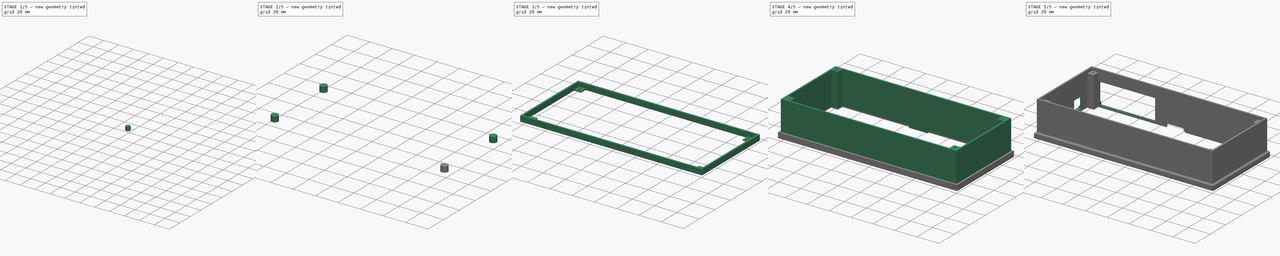
[diagram: build sequence overview — one tinted view per stage of 5, left to right]
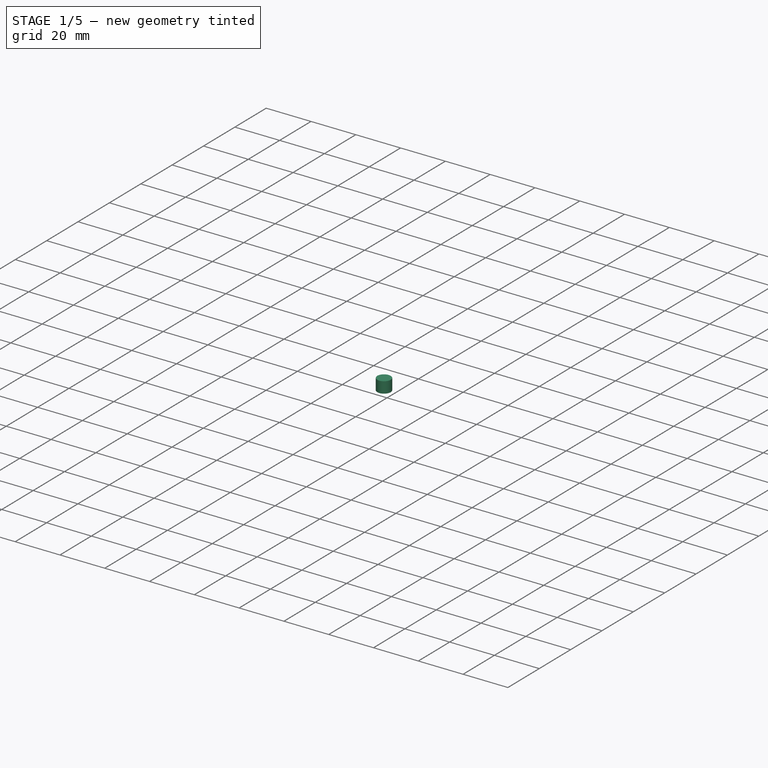
[diagram: stage 1 of 5 — iso view after this stage's code; geometry added in this stage tinted green]
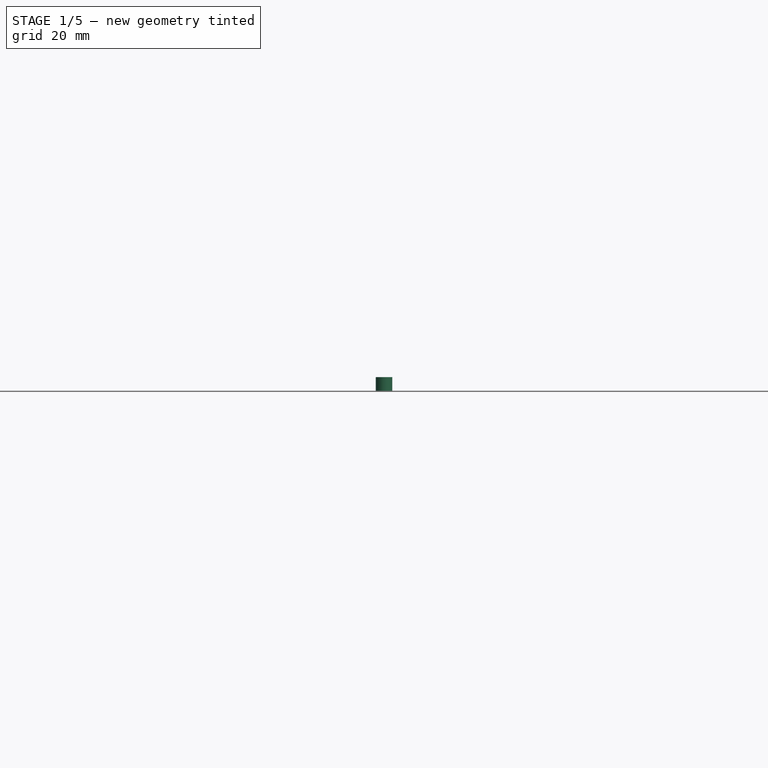
[diagram: stage 1 of 5 — front view after this stage's code; geometry added in this stage tinted green]
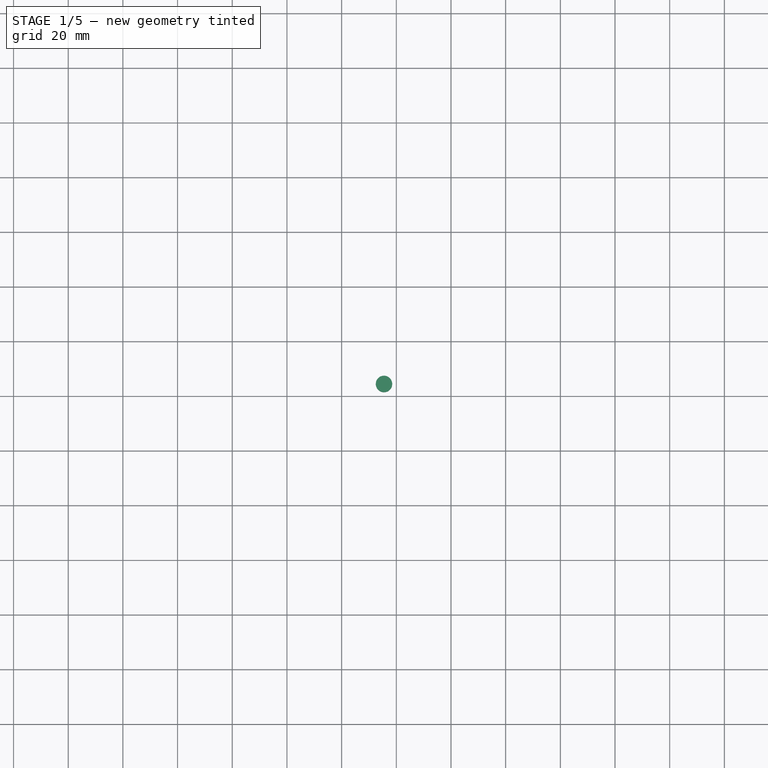
[diagram: stage 1 of 5 — top view after this stage's code; geometry added in this stage tinted green]
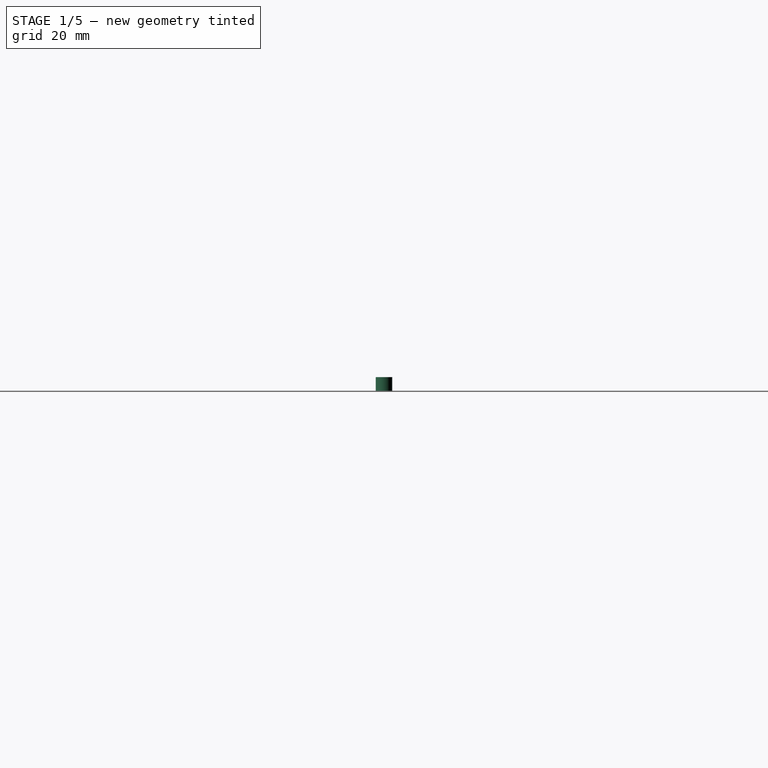
[diagram: stage 1 of 5 — right view after this stage's code; geometry added in this stage tinted green]
FCSTD DOCUMENT  (FreeCAD 0.19R)
Label: clock-enclosure
License: All rights reserved
LicenseURL: http://en.wikipedia.org/wiki/All_rights_reserved
objects: Sketcher::SketchObject×6, Part::Extrusion×6, Part::Box×4, Part::Cut×4, Part::Cylinder×4, Part::MultiFuse×4, Spreadsheet::Sheet×1, Part::Chamfer×1
note: 29 computed .brp shape members not serialized (recipe doc carries the construction recipe); baked Part::Feature solids carry a one-line shape summary decoded from their .brp

FEATURE [Sketcher::SketchObject] Sketch
  FullyConstrained = true
  expr: Constraints[9] = <<dims>>.boardWidth
  expr: Constraints[10] = <<dims>>.boardLength
  sketch-geometry (11):
    g0: LineSegment StartX=0 StartY=0 StartZ=0 EndX=157 EndY=0 EndZ=0
    g1: LineSegment StartX=157 StartY=0 StartZ=0 EndX=157 EndY=68 EndZ=0
    g2: LineSegment StartX=157 StartY=68 StartZ=0 EndX=0 EndY=68 EndZ=0
    g3: LineSegment StartX=0 StartY=68 StartZ=0 EndX=0 EndY=0 EndZ=0
    g4: Circle CenterX=3 CenterY=65 CenterZ=0 NormalX=0 NormalY=0 NormalZ=1 AngleXU=0 Radius=1.5
    g5: Circle CenterX=154 CenterY=65 CenterZ=0 NormalX=0 NormalY=0 NormalZ=1 AngleXU=0 Radius=1.5
    g6: Circle CenterX=3 CenterY=3 CenterZ=0 NormalX=0 NormalY=0 NormalZ=1 AngleXU=0 Radius=1.5
    g7: Circle CenterX=154 CenterY=3 CenterZ=0 NormalX=0 NormalY=0 NormalZ=1 AngleXU=0 Radius=1.5
    g8: LineSegment StartX=3 StartY=65 StartZ=0 EndX=3 EndY=68 EndZ=0
    g9: LineSegment StartX=154 StartY=3 StartZ=0 EndX=157 EndY=3 EndZ=0
    g10: LineSegment StartX=154 StartY=3 StartZ=0 EndX=154 EndY=0 EndZ=0
  constraints (32):
    c: Coincident(g0,g1)
    c: Coincident(g1,g2)
    c: Coincident(g2,g3)
    c: Coincident(g3,g0)
    c: Horizontal(g0)
    c: Horizontal(g2)
    c: Vertical(g1)
    c: Vertical(g3)
    c: Coincident(g0,g-1)
    c: DistanceY(g3,g3) = 68
    c: DistanceX(g0,g0) = 157
    c: Equal(g4,g5)
    c: Equal(g5,g7)
    c: Equal(g7,g6)
    c: Radius(g4) = 1.5
    c: Horizontal(g4,g5)
    c: Horizontal(g6,g7)
    c: Vertical(g4,g6)
    c: Vertical(g5,g7)
    c: DistanceY(g6,g4) = 62
    c: DistanceX(g4,g5) = 151
    c: Coincident(g8,g4)
    c: PointOnObject(g8,g2)
    c: Vertical(g8)
    c: Coincident(g9,g7)
    c: PointOnObject(g9,g1)
    c: Coincident(g10,g7)
    c: PointOnObject(g10,g0)
    c: Vertical(g10)
    c: Horizontal(g9)
    c: Equal(g9,g10)
    c: Equal(g10,g8)
FEATURE [Part::Box] Box  label="case-underside"
  AttacherType = Attacher::AttachEngine3D
  Height = 2
  Length = 160
  Width = 71
  expr: Height = <<dims>>.floorThickness
  expr: Width = <<dims>>.boardWidth + 2 * <<dims>>.wallThickness
  expr: Length = <<dims>>.boardLength + 2 * <<dims>>.wallThickness
FEATURE [Spreadsheet::Sheet] Spreadsheet  label="dims"
  cells = A1=boardLength; B1(boardLength)==157mm; A2=boardWidth; B2(boardWidth)==68mm; A3=mountScrewDiameter; B3(mountScrewDiameter)==3mm; A4=mountScrewXCenterDistance; B4(mountScrewXCenterDistance)==151mm; A5=mountScrewYCenterDistance; B5(mountScrewYCenterDistance)==62mm; A6=heightBelowBottomBoard; B6(heightBelowBottomBoard)==5mm; A7=heightAboveBottomBoard; B7(heightAboveBottomBoard)==27mm; A8=boardThickness; B8(boardThickness)==1.7mm; A9=wallThickness; B9(wallThickness)==1.5mm; A10=screwHeadDiameter; B10(screwHeadDiameter)==6mm; A11=floorThickness; B11(floorThickness)==2mm; A12=topWallHeight; B12(topWallHeight)==30mm
FEATURE [Sketcher::SketchObject] Sketch001  label="walls-profile"
  FullyConstrained = true
  MapMode = 5
  Placement = pos=(0,0,2) rot=(0,0,1;0rad)
  Support = -> [Box]
  expr: Constraints[9] = <<dims>>.boardWidth + 2 * <<dims>>.wallThickness
  expr: Constraints[75] = <<dims>>.mountScrewDiameter / 2
  expr: Constraints[10] = <<dims>>.boardLength + 2 * <<dims>>.wallThickness
  expr: Constraints[57] = <<dims>>.wallThickness
  expr: Constraints[54] = <<dims>>.wallThickness
  expr: Constraints[56] = <<dims>>.wallThickness
  expr: Constraints[52] = <<dims>>.wallThickness
  sketch-geometry (27):
    g0: LineSegment StartX=0 StartY=0 StartZ=0 EndX=160 EndY=0 EndZ=0
    g1: LineSegment StartX=160 StartY=0 StartZ=0 EndX=160 EndY=71 EndZ=0
    g2: LineSegment StartX=160 StartY=71 StartZ=0 EndX=0 EndY=71 EndZ=0
    g3: LineSegment StartX=0 StartY=71 StartZ=0 EndX=0 EndY=0 EndZ=0
    g4: Circle CenterX=4.5 CenterY=66.5 CenterZ=0 NormalX=0 NormalY=0 NormalZ=1 AngleXU=0 Radius=1.5
    g5: Circle CenterX=155.5 CenterY=66.5 CenterZ=0 NormalX=0 NormalY=0 NormalZ=1 AngleXU=0 Radius=1.5
    g6: Circle CenterX=4.5 CenterY=4.5 CenterZ=0 NormalX=0 NormalY=0 NormalZ=1 AngleXU=0 Radius=1.5
    g7: Circle CenterX=155.5 CenterY=4.5 CenterZ=0 NormalX=0 NormalY=0 NormalZ=1 AngleXU=0 Radius=1.5
    g8: LineSegment StartX=4.5 StartY=66.5 StartZ=0 EndX=4.5 EndY=71 EndZ=0
    g9: LineSegment StartX=155.5 StartY=4.5 StartZ=0 EndX=160 EndY=4.5 EndZ=0
    g10: LineSegment StartX=155.5 StartY=4.5 StartZ=0 EndX=155.5 EndY=0 EndZ=0
    g11: LineSegment StartX=152.5 StartY=69.5 StartZ=0 EndX=7.5 EndY=69.5 EndZ=0
    g12: LineSegment StartX=1.5 StartY=63.5 StartZ=0 EndX=1.5 EndY=7.5 EndZ=0
    g13: LineSegment StartX=7.5 StartY=1.5 StartZ=0 EndX=152.5 EndY=1.5 EndZ=0
    g14: LineSegment StartX=158.5 StartY=7.5 StartZ=0 EndX=158.5 EndY=63.5 EndZ=0
    g15: LineSegment StartX=158.5 StartY=63.5 StartZ=0 EndX=152.5 EndY=63.5 EndZ=0
    g16: LineSegment StartX=152.5 StartY=63.5 StartZ=0 EndX=152.5 EndY=69.5 EndZ=0
    g17: LineSegment StartX=158.5 StartY=7.5 StartZ=0 EndX=152.5 EndY=7.5 EndZ=0
    g18: LineSegment StartX=152.5 StartY=7.5 StartZ=0 EndX=152.5 EndY=1.5 EndZ=0
    g19: LineSegment StartX=1.5 StartY=63.5 StartZ=0 EndX=7.5 EndY=63.5 EndZ=0
    g20: LineSegment StartX=7.5 StartY=63.5 StartZ=0 EndX=7.5 EndY=69.5 EndZ=0
    g21: LineSegment StartX=1.5 StartY=7.5 StartZ=0 EndX=7.5 EndY=7.5 EndZ=0
    g22: LineSegment StartX=7.5 StartY=7.5 StartZ=0 EndX=7.5 EndY=1.5 EndZ=0
    g23: Circle CenterX=4.5 CenterY=66.5 CenterZ=0 NormalX=0 NormalY=0 NormalZ=1 AngleXU=0 Radius=1.5
    g24: Circle CenterX=155.5 CenterY=66.5 CenterZ=0 NormalX=0 NormalY=0 NormalZ=1 AngleXU=0 Radius=1.5
    g25: Circle CenterX=155.5 CenterY=4.5 CenterZ=0 NormalX=0 NormalY=0 NormalZ=1 AngleXU=0 Radius=1.5
    g26: Circle CenterX=4.5 CenterY=4.5 CenterZ=0 NormalX=0 NormalY=0 NormalZ=1 AngleXU=0 Radius=1.5
  constraints (76):
    c: Coincident(g0,g1)
    c: Coincident(g1,g2)
    c: Coincident(g2,g3)
    c: Coincident(g3,g0)
    c: Horizontal(g0)
    c: Horizontal(g2)
    c: Vertical(g1)
    c: Vertical(g3)
    c: Coincident(g0,g-1)
    c: DistanceY(g3,g3) = 71
    c: DistanceX(g0,g0) = 160
    c: Equal(g4,g5)
    c: Equal(g5,g7)
    c: Equal(g7,g6)
    c: Radius(g4) = 1.5
    c: Horizontal(g4,g5)
    c: Horizontal(g6,g7)
    c: Vertical(g4,g6)
    c: Vertical(g5,g7)
    c: DistanceY(g6,g4) = 62
    c: DistanceX(g4,g5) = 151
    c: Coincident(g8,g4)
    c: PointOnObject(g8,g2)
    c: Vertical(g8)
    c: Coincident(g9,g7)
    c: PointOnObject(g9,g1)
    c: Coincident(g10,g7)
    c: PointOnObject(g10,g0)
    c: Vertical(g10)
    c: Horizontal(g9)
    c: Equal(g9,g10)
    c: Equal(g10,g8)
    c: Horizontal(g11)
    c: Horizontal(g13)
    c: Vertical(g12)
    c: Vertical(g14)
    c: Coincident(g15,g16)
    c: Horizontal(g15)
    c: Vertical(g16)
    c: Coincident(g17,g18)
    c: Horizontal(g17)
    c: Vertical(g18)
    c: Coincident(g19,g20)
    c: Horizontal(g19)
    c: Vertical(g20)
    c: Coincident(g21,g22)
    c: Horizontal(g21)
    c: Vertical(g22)
    c: Coincident(g14,g17)
    c: Coincident(g13,g18)
    c: Coincident(g12,g21)
    c: Coincident(g13,g22)
    c: DistanceY(g11,g2) = 1.5
    c: Coincident(g20,g11)
    c: DistanceX(g2,g12) = 1.5
    c: Coincident(g12,g19)
    c: DistanceY(g0,g13) = 1.5
    c: DistanceX(g14,g0) = 1.5
    c: Coincident(g16,g11)
    c: Coincident(g15,g14)
    c: Equal(g20,g19)
    c: Equal(g19,g21)
    c: Equal(g21,g22)
    c: Equal(g22,g18)
    c: Equal(g18,g17)
    c: Equal(g17,g15)
    c: Equal(g15,g16)
    c: DistanceY(g20,g20) = 6
    c: Coincident(g23,g4)
    c: Coincident(g24,g5)
    c: Coincident(g25,g7)
    c: Coincident(g26,g6)
    c: Equal(g26,g23)
    c: Equal(g23,g24)
    c: Equal(g24,g25)
    c: Radius(g23) = 1.5
FEATURE [Part::Extrusion] Extrude  label="case-bottom-wall"
  Base = -> Sketch001
  Dir = (0,0,1)
  DirMode = 2
  FaceMakerClass = Part::FaceMakerBullseye
  LengthFwd = 7.7
  LengthRev = 0
  Solid = true
  Symmetric = false
  expr: LengthFwd = <<dims>>.heightBelowBottomBoard + <<dims>>.boardThickness + 1mm
FEATURE [Sketcher::SketchObject] Sketch002  label="mount-hole-profile"
  ExternalGeometry = -> [Sketch001]
  FullyConstrained = true
  MapMode = 5
  Placement = pos=(0,0,9.7) rot=(0,0,1;0rad)
  Support = -> [Extrude]
  sketch-geometry (16):
    g0: LineSegment StartX=7.5 StartY=69.5 StartZ=0 EndX=1.5 EndY=69.5 EndZ=0
    g1: LineSegment StartX=1.5 StartY=69.5 StartZ=0 EndX=1.5 EndY=63.5 EndZ=0
    g2: LineSegment StartX=1.5 StartY=63.5 StartZ=0 EndX=7.5 EndY=63.5 EndZ=0
    g3: LineSegment StartX=7.5 StartY=63.5 StartZ=0 EndX=7.5 EndY=69.5 EndZ=0
    g4: LineSegment StartX=152.5 StartY=69.5 StartZ=0 EndX=158.5 EndY=69.5 EndZ=0
    g5: LineSegment StartX=158.5 StartY=69.5 StartZ=0 EndX=158.5 EndY=63.5 EndZ=0
    g6: LineSegment StartX=158.5 StartY=63.5 StartZ=0 EndX=152.5 EndY=63.5 EndZ=0
    g7: LineSegment StartX=152.5 StartY=63.5 StartZ=0 EndX=152.5 EndY=69.5 EndZ=0
    g8: LineSegment StartX=1.5 StartY=7.5 StartZ=0 EndX=7.5 EndY=7.5 EndZ=0
    g9: LineSegment StartX=7.5 StartY=7.5 StartZ=0 EndX=7.5 EndY=1.5 EndZ=0
    g10: LineSegment StartX=7.5 StartY=1.5 StartZ=0 EndX=1.5 EndY=1.5 EndZ=0
    g11: LineSegment StartX=1.5 StartY=1.5 StartZ=0 EndX=1.5 EndY=7.5 EndZ=0
    g12: LineSegment StartX=158.5 StartY=7.5 StartZ=0 EndX=152.5 EndY=7.5 EndZ=0
    g13: LineSegment StartX=152.5 StartY=7.5 StartZ=0 EndX=152.5 EndY=1.5 EndZ=0
    g14: LineSegment StartX=152.5 StartY=1.5 StartZ=0 EndX=158.5 EndY=1.5 EndZ=0
    g15: LineSegment StartX=158.5 StartY=1.5 StartZ=0 EndX=158.5 EndY=7.5 EndZ=0
  constraints (40):
    c: Coincident(g0,g1)
    c: Coincident(g1,g2)
    c: Coincident(g2,g3)
    c: Coincident(g3,g0)
    c: Horizontal(g0)
    c: Horizontal(g2)
    c: Vertical(g1)
    c: Vertical(g3)
    c: Coincident(g0,g-4)
    c: Coincident(g1,g-5)
    c: Coincident(g4,g5)
    c: Coincident(g5,g6)
    c: Coincident(g6,g7)
    c: Coincident(g7,g4)
    c: Horizontal(g4)
    c: Horizontal(g6)
    c: Vertical(g5)
    c: Vertical(g7)
    c: Coincident(g4,g-6)
    c: Coincident(g5,g-7)
    c: Coincident(g8,g9)
    c: Coincident(g9,g10)
    c: Coincident(g10,g11)
    c: Coincident(g11,g8)
    c: Horizontal(g8)
    c: Horizontal(g10)
    c: Vertical(g9)
    c: Vertical(g11)
    c: Coincident(g8,g-13)
    c: Coincident(g9,g-14)
    c: Coincident(g12,g13)
    c: Coincident(g13,g14)
    c: Coincident(g14,g15)
    c: Coincident(g15,g12)
    c: Horizontal(g12)
    c: Horizontal(g14)
    c: Vertical(g13)
    c: Vertical(g15)
    c: Coincident(g12,g-10)
    c: Coincident(g13,g-11)
FEATURE [Part::Extrusion] Extrude001  label="mount-hole-removed"
  Base = -> Sketch002
  Dir = (0,0,1)
  DirMode = 2
  FaceMakerClass = Part::FaceMakerBullseye
  LengthFwd = 2.7
  LengthRev = 0
  Reversed = true
  Solid = true
  Symmetric = false
  expr: LengthFwd = <<dims>>.boardThickness + 1mm
FEATURE [Part::Cut] Cut  label="case-bottom-wall-board-mount"
  Base = -> Extrude
  Tool = -> Extrude001
FEATURE [Part::Cylinder] Cylinder003  label="case-bottom-right-bottom-screwhole"
  Angle = 360
  AttacherType = Attacher::AttachEngine3D
  AttachmentOffset = pos=(0,0,-3) rot=(0,0,1;0rad)
  Height = 5
  MapMode = 11
  Placement = pos=(155.5,4.5,5) rot=(0.707107,-0.707107,0;3.14159rad)
  Radius = 3
  Support = -> [Cut]
  expr: Radius = <<dims>>.screwHeadDiameter / 2
  expr: .AttachmentOffset.Base.z = <<case-underside>>.Height - Height
  expr: Height = <<case-underside>>.Height + 3mm
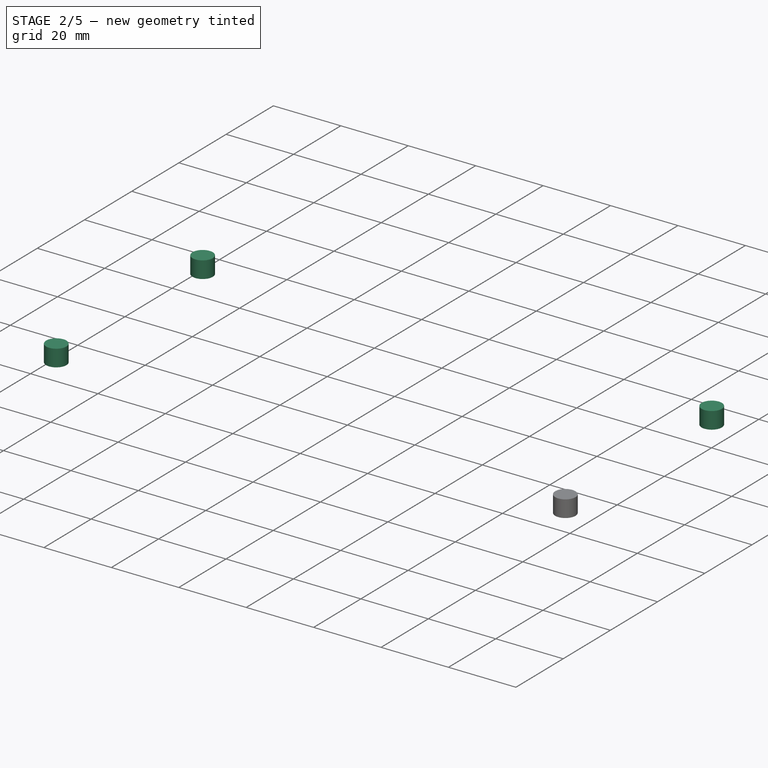
[diagram: stage 2 of 5 — iso view after this stage's code; geometry added in this stage tinted green]
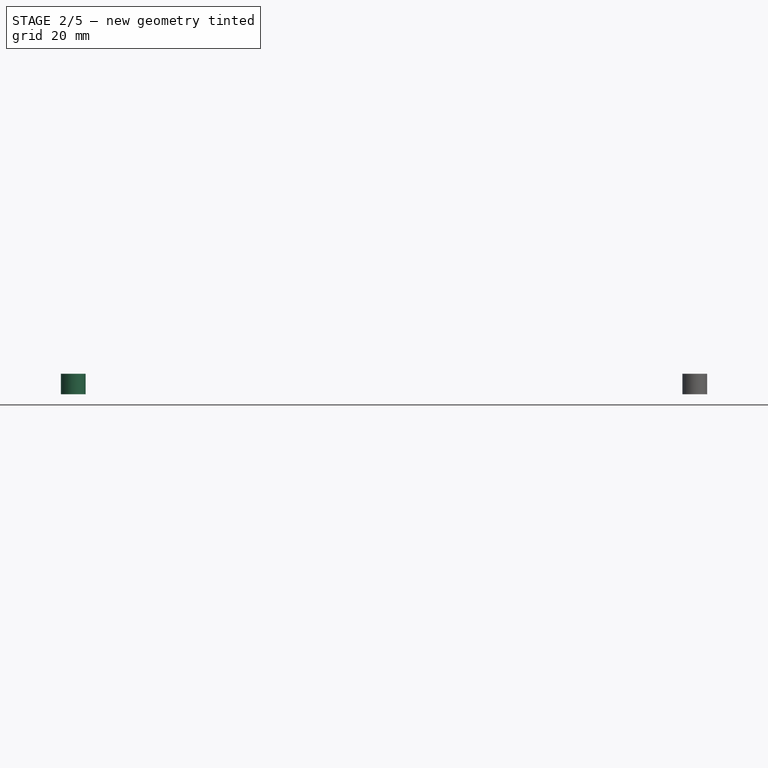
[diagram: stage 2 of 5 — front view after this stage's code; geometry added in this stage tinted green]
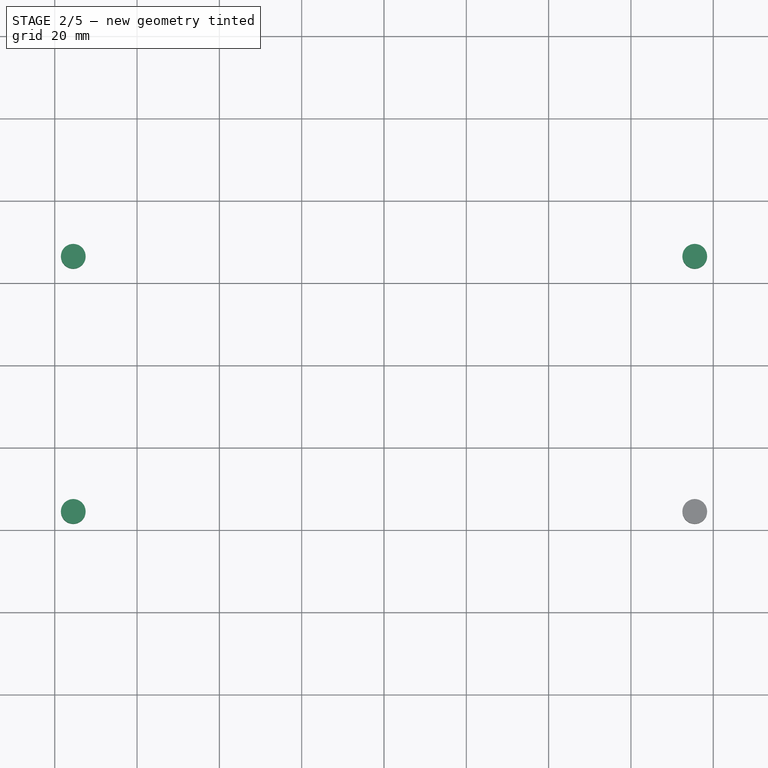
[diagram: stage 2 of 5 — top view after this stage's code; geometry added in this stage tinted green]
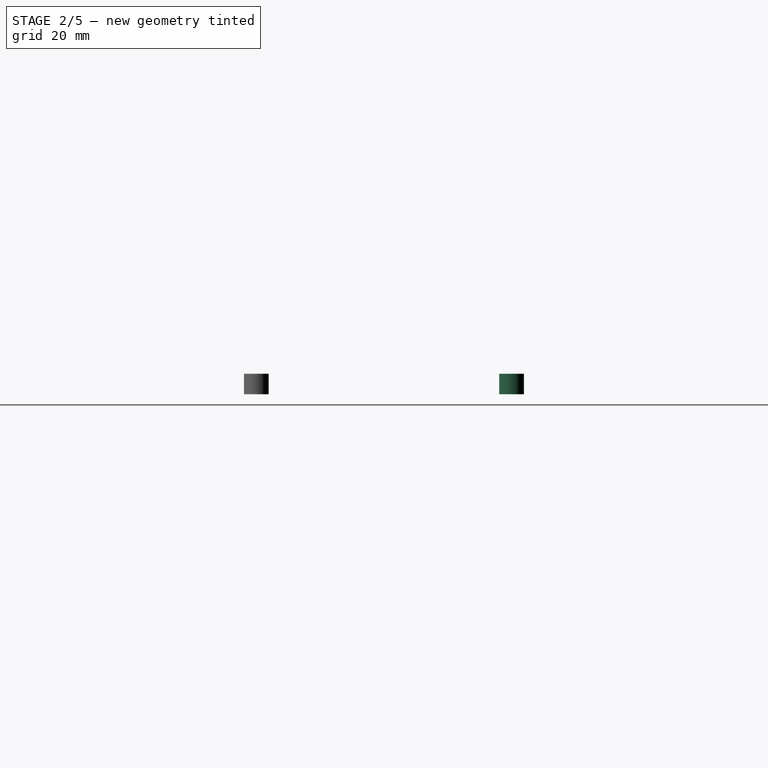
[diagram: stage 2 of 5 — right view after this stage's code; geometry added in this stage tinted green]
FEATURE [Part::Cylinder] Cylinder  label="case-bottom-left-bottom-screwhole"
  Angle = 360
  AttacherType = Attacher::AttachEngine3D
  AttachmentOffset = pos=(0,0,-3) rot=(0,0,1;0rad)
  Height = 5
  MapMode = 11
  Placement = pos=(4.5,4.5,5) rot=(0.707107,-0.707107,0;3.14159rad)
  Radius = 3
  Support = -> [Cut]
  expr: .AttachmentOffset.Base.z = <<case-underside>>.Height - Height
  expr: Radius = <<dims>>.screwHeadDiameter / 2
  expr: Height = <<case-underside>>.Height + 3mm
FEATURE [Part::Cylinder] Cylinder001  label="case-bottom-left-top-screwhole"
  Angle = 360
  AttacherType = Attacher::AttachEngine3D
  AttachmentOffset = pos=(0,0,-3) rot=(0,0,1;0rad)
  Height = 5
  MapMode = 11
  Placement = pos=(4.5,66.5,5) rot=(0.707107,-0.707107,0;3.14159rad)
  Radius = 3
  Support = -> [Cut]
  expr: .AttachmentOffset.Base.z = <<case-underside>>.Height - Height
  expr: Radius = <<dims>>.screwHeadDiameter / 2
  expr: Height = <<case-underside>>.Height + 3mm
FEATURE [Part::Cylinder] Cylinder002  label="case-bottom-right-top-screwhole"
  Angle = 360
  AttacherType = Attacher::AttachEngine3D
  AttachmentOffset = pos=(0,0,-3) rot=(0,0,1;0rad)
  Height = 5
  MapMode = 11
  Placement = pos=(155.5,66.5,5) rot=(0.707107,-0.707107,0;3.14159rad)
  Radius = 3
  Support = -> [Cut]
  expr: .AttachmentOffset.Base.z = <<case-underside>>.Height - Height
  expr: Radius = <<dims>>.screwHeadDiameter / 2
  expr: Height = <<case-underside>>.Height + 3mm
FEATURE [Part::MultiFuse] Fusion001  label="case-bottom-screw-insets"
  Shapes = -> [Cylinder,Cylinder001,Cylinder002,Cylinder003]
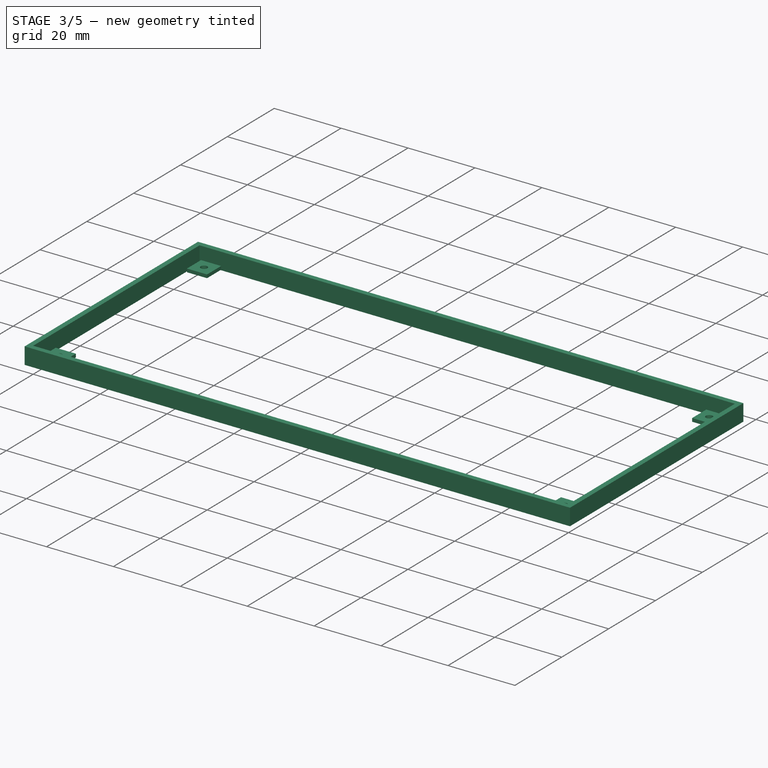
[diagram: stage 3 of 5 — iso view after this stage's code; geometry added in this stage tinted green]
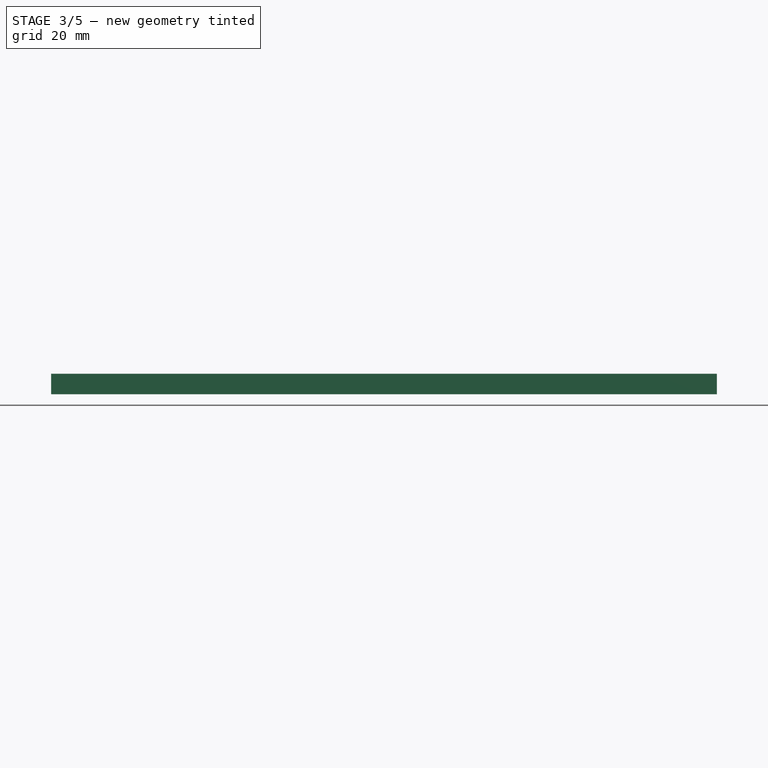
[diagram: stage 3 of 5 — front view after this stage's code; geometry added in this stage tinted green]
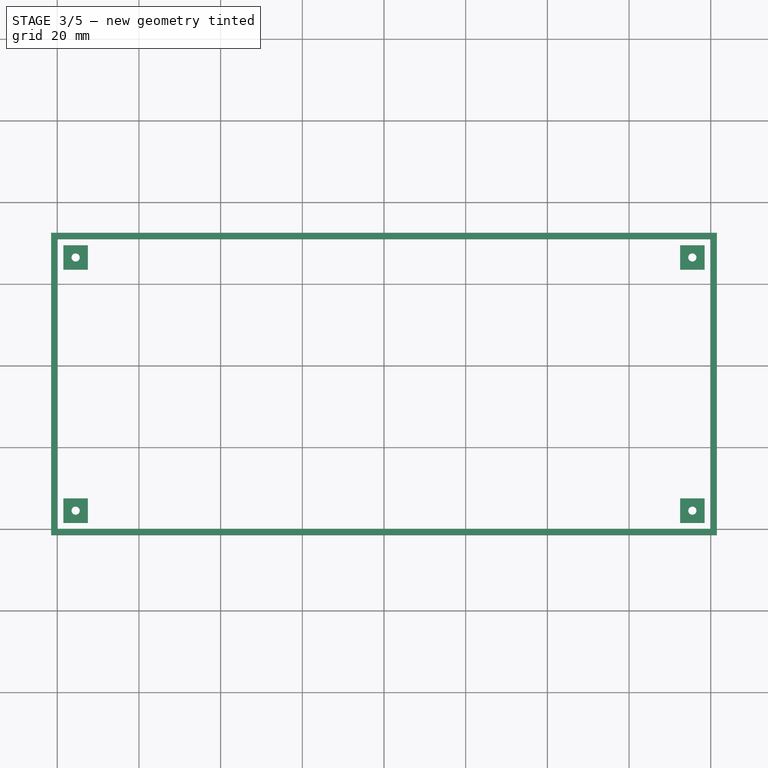
[diagram: stage 3 of 5 — top view after this stage's code; geometry added in this stage tinted green]
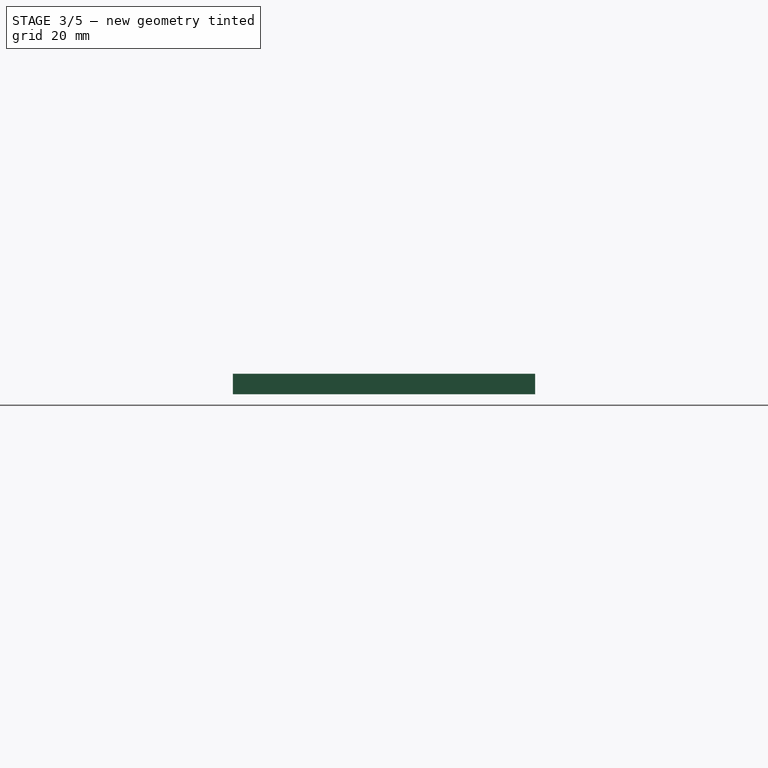
[diagram: stage 3 of 5 — right view after this stage's code; geometry added in this stage tinted green]
FEATURE [Part::Cut] Cut001  label="case-underside-with-screw-insets"
  Base = -> Box
  Tool = -> Fusion001
FEATURE [Part::Cut] Cut002  label="case-bottom-wall-with-screw-insets"
  Base = -> Cut
  Tool = -> Fusion001
FEATURE [Part::MultiFuse] Fusion  label="case-bottom"
  Shapes = -> [Cut001,Cut002]
FEATURE [Sketcher::SketchObject] Sketch004  label="top-walls-screw-profile"
  ExternalGeometry = -> [Sketch003]
  FullyConstrained = true
  MapMode = 5
  Placement = pos=(0,0,9.7) rot=(0,0,1;0rad)
  Support = -> [Fusion]
  sketch-geometry (27):
    g0: Circle CenterX=4.5 CenterY=66.5 CenterZ=0 NormalX=0 NormalY=0 NormalZ=1 AngleXU=0 Radius=1.5
    g1: Circle CenterX=155.5 CenterY=66.5 CenterZ=0 NormalX=0 NormalY=0 NormalZ=1 AngleXU=0 Radius=1.5
    g2: Circle CenterX=4.5 CenterY=4.5 CenterZ=0 NormalX=0 NormalY=0 NormalZ=1 AngleXU=0 Radius=1.5
    g3: Circle CenterX=155.5 CenterY=4.5 CenterZ=0 NormalX=0 NormalY=0 NormalZ=1 AngleXU=0 Radius=1.5
    g4: LineSegment StartX=4.5 StartY=66.5 StartZ=0 EndX=4.5 EndY=71 EndZ=0
    g5: LineSegment StartX=155.5 StartY=4.5 StartZ=0 EndX=160 EndY=4.5 EndZ=0
    g6: LineSegment StartX=155.5 StartY=4.5 StartZ=0 EndX=155.5 EndY=0 EndZ=0
    g7: LineSegment StartX=158.5 StartY=63.5 StartZ=0 EndX=152.5 EndY=63.5 EndZ=0
    g8: LineSegment StartX=152.5 StartY=63.5 StartZ=0 EndX=152.5 EndY=69.5 EndZ=0
    g9: LineSegment StartX=158.5 StartY=7.5 StartZ=0 EndX=152.5 EndY=7.5 EndZ=0
    g10: LineSegment StartX=152.5 StartY=7.5 StartZ=0 EndX=152.5 EndY=1.5 EndZ=0
    g11: LineSegment StartX=1.5 StartY=63.5 StartZ=0 EndX=7.5 EndY=63.5 EndZ=0
    g12: LineSegment StartX=7.5 StartY=63.5 StartZ=0 EndX=7.5 EndY=69.5 EndZ=0
    g13: LineSegment StartX=1.5 StartY=7.5 StartZ=0 EndX=7.5 EndY=7.5 EndZ=0
    g14: LineSegment StartX=7.5 StartY=7.5 StartZ=0 EndX=7.5 EndY=1.5 EndZ=0
    g15: Circle CenterX=4.5 CenterY=66.5 CenterZ=0 NormalX=0 NormalY=0 NormalZ=1 AngleXU=0 Radius=1
    g16: Circle CenterX=155.5 CenterY=66.5 CenterZ=0 NormalX=0 NormalY=0 NormalZ=1 AngleXU=0 Radius=1
    g17: Circle CenterX=155.5 CenterY=4.5 CenterZ=0 NormalX=0 NormalY=0 NormalZ=1 AngleXU=0 Radius=1
    g18: Circle CenterX=4.5 CenterY=4.5 CenterZ=0 NormalX=0 NormalY=0 NormalZ=1 AngleXU=0 Radius=1
    g19: LineSegment StartX=7.5 StartY=69.5 StartZ=0 EndX=1.5 EndY=69.5 EndZ=0
    g20: LineSegment StartX=1.5 StartY=69.5 StartZ=0 EndX=1.5 EndY=63.5 EndZ=0
    g21: LineSegment StartX=1.5 StartY=7.5 StartZ=0 EndX=1.5 EndY=1.5 EndZ=0
    g22: LineSegment StartX=1.5 StartY=1.5 StartZ=0 EndX=7.5 EndY=1.5 EndZ=0
    g23: LineSegment StartX=158.5 StartY=7.5 StartZ=0 EndX=158.5 EndY=1.5 EndZ=0
    g24: LineSegment StartX=158.5 StartY=1.5 StartZ=0 EndX=152.5 EndY=1.5 EndZ=0
    g25: LineSegment StartX=152.5 StartY=69.5 StartZ=0 EndX=158.5 EndY=69.5 EndZ=0
    g26: LineSegment StartX=158.5 StartY=69.5 StartZ=0 EndX=158.5 EndY=63.5 EndZ=0
  constraints (73):
    c: Equal(g0,g1)
    c: Equal(g1,g3)
    c: Equal(g3,g2)
    c: Radius(g0) = 1.5
    c: Horizontal(g0,g1)
    c: Horizontal(g2,g3)
    c: Vertical(g0,g2)
    c: Vertical(g1,g3)
    c: DistanceY(g2,g0) = 62
    c: DistanceX(g0,g1) = 151
    c: Coincident(g4,g0)
    c: Vertical(g4)
    c: Coincident(g5,g3)
    c: Coincident(g6,g3)
    c: Vertical(g6)
    c: Horizontal(g5)
    c: Equal(g5,g6)
    c: Equal(g6,g4)
    c: Coincident(g7,g8)
    c: Horizontal(g7)
    c: Vertical(g8)
    c: Coincident(g9,g10)
    c: Horizontal(g9)
    c: Vertical(g10)
    c: Coincident(g11,g12)
    c: Horizontal(g11)
    c: Vertical(g12)
    c: Coincident(g13,g14)
    c: Horizontal(g13)
    c: Vertical(g14)
    c: Equal(g12,g11)
    c: Equal(g11,g13)
    c: Equal(g13,g14)
    c: Equal(g14,g10)
    c: Equal(g10,g9)
    c: Equal(g9,g7)
    c: Equal(g7,g8)
    c: DistanceY(g12,g12) = 6
    c: Coincident(g15,g0)
    c: Coincident(g16,g1)
    c: Coincident(g17,g3)
    c: Coincident(g18,g2)
    c: Equal(g18,g15)
    c: Equal(g15,g16)
    c: Equal(g16,g17)
    c: Radius(g15) = 1
    c: PointOnObject(g4,g-5)
    c: PointOnObject(g5,g-3)
    c: PointOnObject(g6,g-4)
    c: Coincident(g12,g-6)
    c: Coincident(g13,g-9)
    c: Coincident(g9,g-7)
    c: Coincident(g8,g-6)
    c: Coincident(g12,g19)
    c: Horizontal(g19)
    c: Coincident(g19,g20)
    c: Coincident(g20,g11)
    c: Vertical(g20)
    c: Coincident(g13,g21)
    c: Vertical(g21)
    c: Coincident(g21,g22)
    c: Coincident(g22,g14)
    c: Horizontal(g22)
    c: Coincident(g9,g23)
    c: Vertical(g23)
    c: Coincident(g23,g24)
    c: Coincident(g24,g10)
    c: Horizontal(g24)
    c: Coincident(g8,g25)
    c: Horizontal(g25)
    c: Coincident(g25,g26)
    c: Coincident(g26,g7)
    c: Vertical(g26)
FEATURE [Part::Extrusion] Extrude003  label="top-walls-protrusion"
  Base = -> Sketch004
  Dir = (0,0,1)
  DirMode = 2
  FaceMakerClass = Part::FaceMakerBullseye
  LengthFwd = 1
  LengthRev = 0
  Reversed = true
  Solid = true
  Symmetric = false
FEATURE [Sketcher::SketchObject] Sketch005  label="top-walls-surround-profile"
  ExternalGeometry = -> [Sketch003]
  FullyConstrained = true
  MapMode = 5
  Placement = pos=(0,0,9.7) rot=(1,0,0;3.14159rad)
  expr: Constraints[21] = <<dims>>.wallThickness
  expr: Constraints[20] = <<dims>>.wallThickness
  expr: Constraints[9] = <<dims>>.wallThickness
  expr: Constraints[8] = <<dims>>.wallThickness
  sketch-geometry (8):
    g0: LineSegment StartX=-1.5 StartY=-72.5 StartZ=0 EndX=161.5 EndY=-72.5 EndZ=0
    g1: LineSegment StartX=161.5 StartY=-72.5 StartZ=0 EndX=161.5 EndY=1.5 EndZ=0
    g2: LineSegment StartX=161.5 StartY=1.5 StartZ=0 EndX=-1.5 EndY=1.5 EndZ=0
    g3: LineSegment StartX=-1.5 StartY=1.5 StartZ=0 EndX=-1.5 EndY=-72.5 EndZ=0
    g4: LineSegment StartX=0 StartY=-71 StartZ=0 EndX=160 EndY=-71 EndZ=0
    g5: LineSegment StartX=160 StartY=-71 StartZ=0 EndX=160 EndY=0 EndZ=0
    g6: LineSegment StartX=160 StartY=0 StartZ=0 EndX=0 EndY=0 EndZ=0
    g7: LineSegment StartX=0 StartY=0 StartZ=0 EndX=0 EndY=-71 EndZ=0
  constraints (22):
    c: Coincident(g0,g1)
    c: Coincident(g1,g2)
    c: Coincident(g2,g3)
    c: Coincident(g3,g0)
    c: Horizontal(g0)
    c: Horizontal(g2)
    c: Vertical(g1)
    c: Vertical(g3)
    c: DistanceX(g0,g-6) = 1.5
    c: DistanceX(g-5,g1) = 1.5
    c: Coincident(g4,g5)
    c: Coincident(g5,g6)
    c: Coincident(g6,g7)
    c: Coincident(g7,g4)
    c: Horizontal(g4)
    c: Horizontal(g6)
    c: Vertical(g5)
    c: Vertical(g7)
    c: Coincident(g4,g-6)
    c: Coincident(g5,g-5)
    c: DistanceY(g5,g1) = 1.5
    c: DistanceY(g0,g4) = 1.5
FEATURE [Part::Extrusion] Extrude005  label="top-wall-surround"
  Base = -> Sketch005
  Dir = (0,0,-1)
  DirMode = 2
  FaceMakerClass = Part::FaceMakerBullseye
  LengthFwd = 2
  LengthRev = 3
  Solid = true
  Symmetric = false
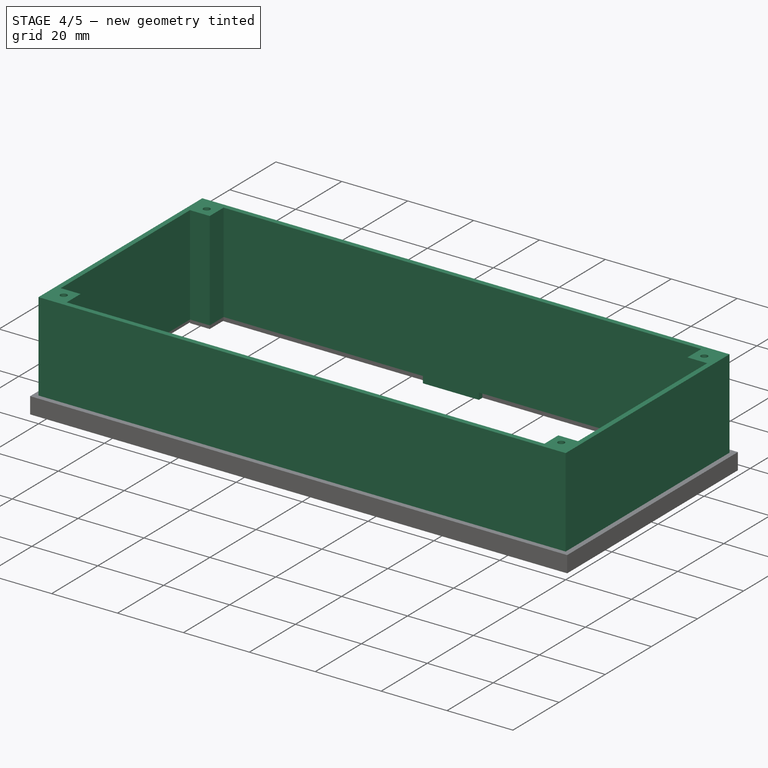
[diagram: stage 4 of 5 — iso view after this stage's code; geometry added in this stage tinted green]
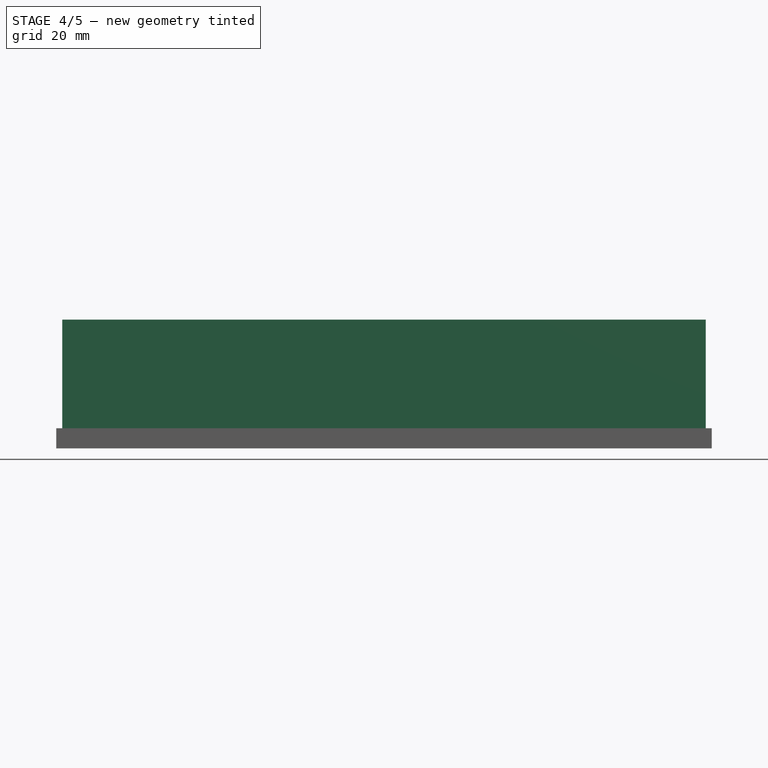
[diagram: stage 4 of 5 — front view after this stage's code; geometry added in this stage tinted green]
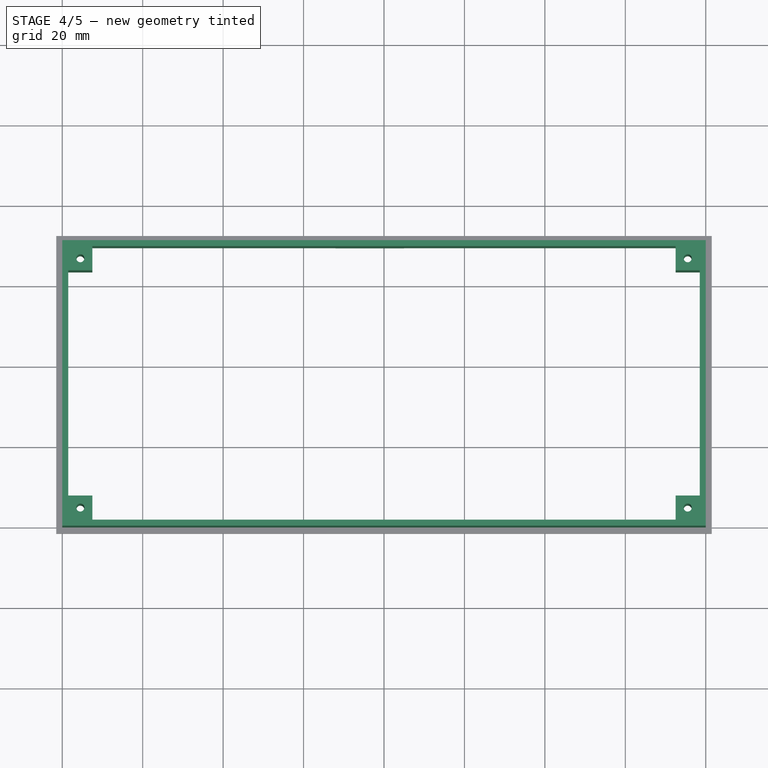
[diagram: stage 4 of 5 — top view after this stage's code; geometry added in this stage tinted green]
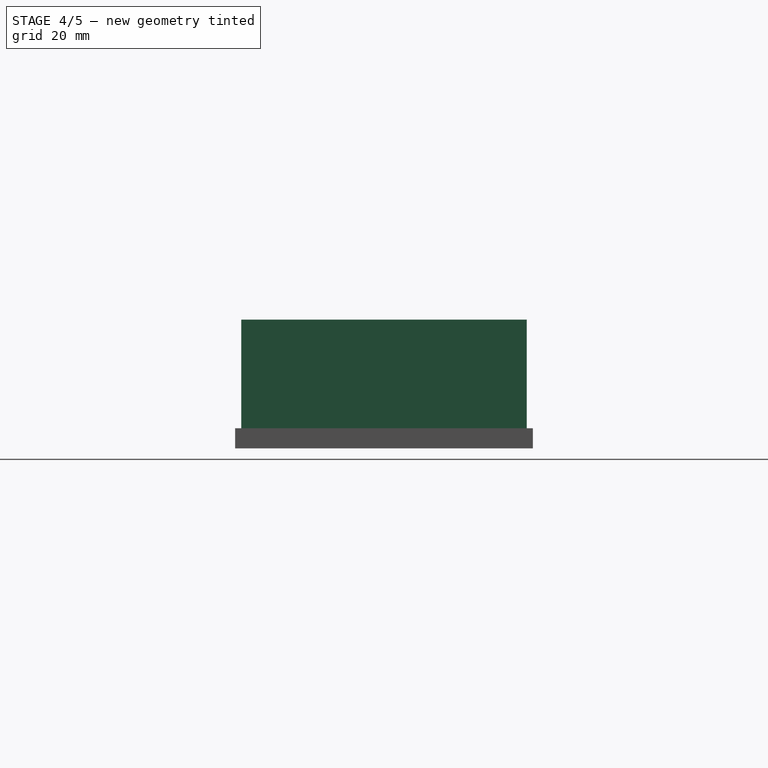
[diagram: stage 4 of 5 — right view after this stage's code; geometry added in this stage tinted green]
FEATURE [Sketcher::SketchObject] Sketch003  label="top-walls-profile"
  FullyConstrained = true
  MapMode = 5
  Placement = pos=(0,0,9.7) rot=(0,0,1;0rad)
  Support = -> [Fusion]
  expr: Constraints[52] = <<dims>>.wallThickness
  expr: Constraints[56] = <<dims>>.wallThickness
  expr: Constraints[54] = <<dims>>.wallThickness
  expr: Constraints[57] = <<dims>>.wallThickness
  expr: Constraints[10] = <<dims>>.boardLength + 2 * <<dims>>.wallThickness
  expr: Constraints[9] = <<dims>>.boardWidth + 2 * <<dims>>.wallThickness
  sketch-geometry (27):
    g0: LineSegment StartX=0 StartY=0 StartZ=0 EndX=160 EndY=0 EndZ=0
    g1: LineSegment StartX=160 StartY=0 StartZ=0 EndX=160 EndY=71 EndZ=0
    g2: LineSegment StartX=160 StartY=71 StartZ=0 EndX=0 EndY=71 EndZ=0
    g3: LineSegment StartX=0 StartY=71 StartZ=0 EndX=0 EndY=0 EndZ=0
    g4: Circle CenterX=4.5 CenterY=66.5 CenterZ=0 NormalX=0 NormalY=0 NormalZ=1 AngleXU=0 Radius=1.5
    g5: Circle CenterX=155.5 CenterY=66.5 CenterZ=0 NormalX=0 NormalY=0 NormalZ=1 AngleXU=0 Radius=1.5
    g6: Circle CenterX=4.5 CenterY=4.5 CenterZ=0 NormalX=0 NormalY=0 NormalZ=1 AngleXU=0 Radius=1.5
    g7: Circle CenterX=155.5 CenterY=4.5 CenterZ=0 NormalX=0 NormalY=0 NormalZ=1 AngleXU=0 Radius=1.5
    g8: LineSegment StartX=4.5 StartY=66.5 StartZ=0 EndX=4.5 EndY=71 EndZ=0
    g9: LineSegment StartX=155.5 StartY=4.5 StartZ=0 EndX=160 EndY=4.5 EndZ=0
    g10: LineSegment StartX=155.5 StartY=4.5 StartZ=0 EndX=155.5 EndY=0 EndZ=0
    g11: LineSegment StartX=152.5 StartY=69.5 StartZ=0 EndX=7.5 EndY=69.5 EndZ=0
    g12: LineSegment StartX=1.5 StartY=63.5 StartZ=0 EndX=1.5 EndY=7.5 EndZ=0
    g13: LineSegment StartX=7.5 StartY=1.5 StartZ=0 EndX=152.5 EndY=1.5 EndZ=0
    g14: LineSegment StartX=158.5 StartY=7.5 StartZ=0 EndX=158.5 EndY=63.5 EndZ=0
    g15: LineSegment StartX=158.5 StartY=63.5 StartZ=0 EndX=152.5 EndY=63.5 EndZ=0
    g16: LineSegment StartX=152.5 StartY=63.5 StartZ=0 EndX=152.5 EndY=69.5 EndZ=0
    g17: LineSegment StartX=158.5 StartY=7.5 StartZ=0 EndX=152.5 EndY=7.5 EndZ=0
    g18: LineSegment StartX=152.5 StartY=7.5 StartZ=0 EndX=152.5 EndY=1.5 EndZ=0
    g19: LineSegment StartX=1.5 StartY=63.5 StartZ=0 EndX=7.5 EndY=63.5 EndZ=0
    g20: LineSegment StartX=7.5 StartY=63.5 StartZ=0 EndX=7.5 EndY=69.5 EndZ=0
    g21: LineSegment StartX=1.5 StartY=7.5 StartZ=0 EndX=7.5 EndY=7.5 EndZ=0
    g22: LineSegment StartX=7.5 StartY=7.5 StartZ=0 EndX=7.5 EndY=1.5 EndZ=0
    g23: Circle CenterX=4.5 CenterY=66.5 CenterZ=0 NormalX=0 NormalY=0 NormalZ=1 AngleXU=0 Radius=1
    g24: Circle CenterX=155.5 CenterY=66.5 CenterZ=0 NormalX=0 NormalY=0 NormalZ=1 AngleXU=0 Radius=1
    g25: Circle CenterX=155.5 CenterY=4.5 CenterZ=0 NormalX=0 NormalY=0 NormalZ=1 AngleXU=0 Radius=1
    g26: Circle CenterX=4.5 CenterY=4.5 CenterZ=0 NormalX=0 NormalY=0 NormalZ=1 AngleXU=0 Radius=1
  constraints (76):
    c: Coincident(g0,g1)
    c: Coincident(g1,g2)
    c: Coincident(g2,g3)
    c: Coincident(g3,g0)
    c: Horizontal(g0)
    c: Horizontal(g2)
    c: Vertical(g1)
    c: Vertical(g3)
    c: Coincident(g0,g-1)
    c: DistanceY(g3,g3) = 71
    c: DistanceX(g0,g0) = 160
    c: Equal(g4,g5)
    c: Equal(g5,g7)
    c: Equal(g7,g6)
    c: Radius(g4) = 1.5
    c: Horizontal(g4,g5)
    c: Horizontal(g6,g7)
    c: Vertical(g4,g6)
    c: Vertical(g5,g7)
    c: DistanceY(g6,g4) = 62
    c: DistanceX(g4,g5) = 151
    c: Coincident(g8,g4)
    c: PointOnObject(g8,g2)
    c: Vertical(g8)
    c: Coincident(g9,g7)
    c: PointOnObject(g9,g1)
    c: Coincident(g10,g7)
    c: PointOnObject(g10,g0)
    c: Vertical(g10)
    c: Horizontal(g9)
    c: Equal(g9,g10)
    c: Equal(g10,g8)
    c: Horizontal(g11)
    c: Horizontal(g13)
    c: Vertical(g12)
    c: Vertical(g14)
    c: Coincident(g15,g16)
    c: Horizontal(g15)
    c: Vertical(g16)
    c: Coincident(g17,g18)
    c: Horizontal(g17)
    c: Vertical(g18)
    c: Coincident(g19,g20)
    c: Horizontal(g19)
    c: Vertical(g20)
    c: Coincident(g21,g22)
    c: Horizontal(g21)
    c: Vertical(g22)
    c: Coincident(g14,g17)
    c: Coincident(g13,g18)
    c: Coincident(g12,g21)
    c: Coincident(g13,g22)
    c: DistanceY(g11,g2) = 1.5
    c: Coincident(g20,g11)
    c: DistanceX(g2,g12) = 1.5
    c: Coincident(g12,g19)
    c: DistanceY(g0,g13) = 1.5
    c: DistanceX(g14,g0) = 1.5
    c: Coincident(g16,g11)
    c: Coincident(g15,g14)
    c: Equal(g20,g19)
    c: Equal(g19,g21)
    c: Equal(g21,g22)
    c: Equal(g22,g18)
    c: Equal(g18,g17)
    c: Equal(g17,g15)
    c: Equal(g15,g16)
    c: DistanceY(g20,g20) = 6
    c: Coincident(g23,g4)
    c: Coincident(g24,g5)
    c: Coincident(g25,g7)
    c: Coincident(g26,g6)
    c: Equal(g26,g23)
    c: Equal(g23,g24)
    c: Equal(g24,g25)
    c: Radius(g23) = 1
FEATURE [Part::Extrusion] Extrude002  label="top-wall-main"
  Base = -> Sketch003
  Dir = (0,0,1)
  DirMode = 2
  FaceMakerClass = Part::FaceMakerBullseye
  LengthFwd = 30
  LengthRev = 0
  Solid = true
  Symmetric = false
  expr: LengthFwd = <<dims>>.topWallHeight
FEATURE [Part::Box] Box003  label="ribbon-cable-cutout"
  AttacherType = Attacher::AttachEngine3D
  AttachmentOffset = pos=(68,7.7,-1.5) rot=(0,0,1;0rad)
  Height = 3
  Length = 17
  MapMode = 5
  Placement = pos=(68,72.5,7.7) rot=(1,0,0;1.5708rad)
  Support = -> [Extrude002]
  Width = 4
  expr: Height = <<dims>>.wallThickness * 2
FEATURE [Part::Extrusion] Extrude004  label="top-board-screw-backoff"
  Base = -> Sketch004
  Dir = (0,0,1)
  DirMode = 2
  FaceMakerClass = Part::FaceMakerBullseye
  LengthFwd = 0
  LengthRev = 2.7
  Placement = pos=(0,0,30) rot=(0,0,1;0rad)
  Solid = true
  Symmetric = false
  expr: .Placement.Base.z = <<top-wall-main>>.LengthFwd
  expr: LengthRev = <<dims>>.boardThickness + 1mm
FEATURE [Part::MultiFuse] Fusion004  label="top-wall-solid"
  Shapes = -> [Extrude002,Extrude005,Extrude003]
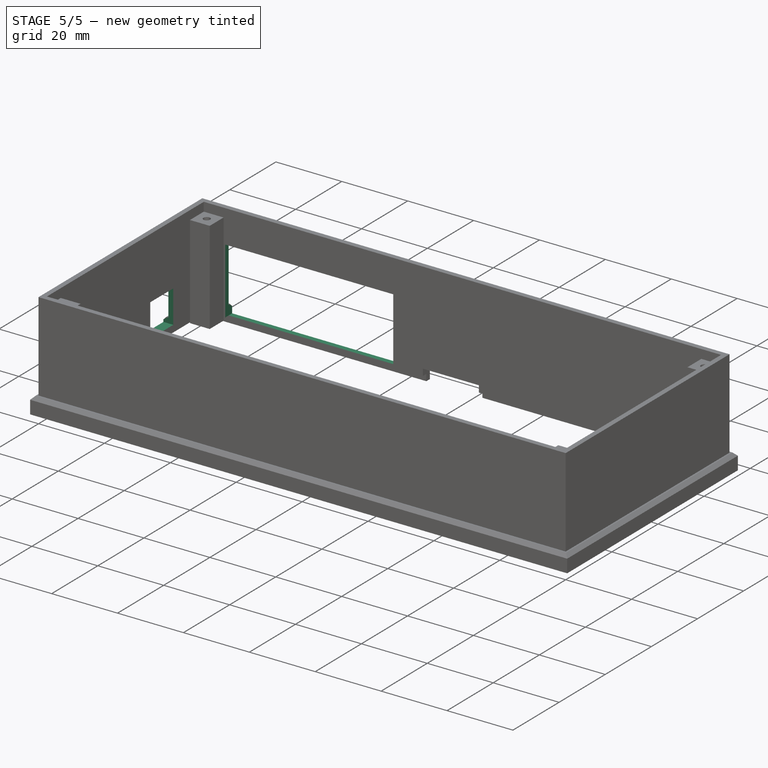
[diagram: stage 5 of 5 — iso view after this stage's code; geometry added in this stage tinted green]
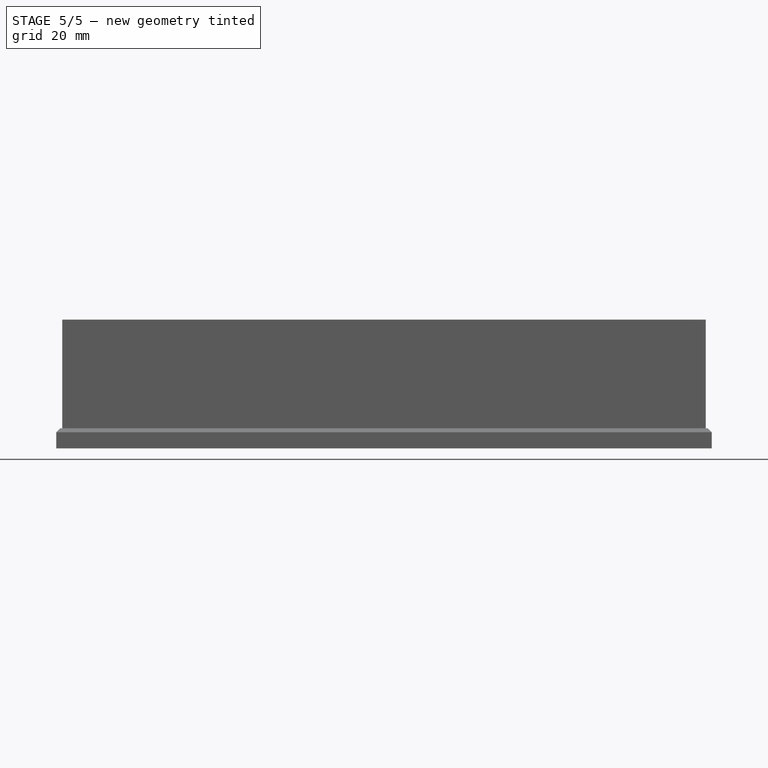
[diagram: stage 5 of 5 — front view after this stage's code; geometry added in this stage tinted green]
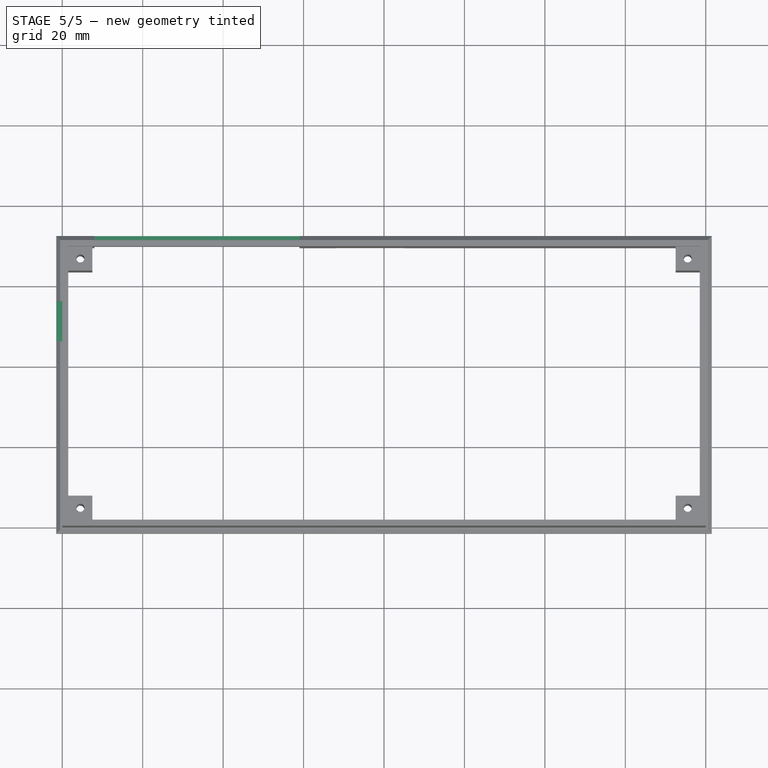
[diagram: stage 5 of 5 — top view after this stage's code; geometry added in this stage tinted green]
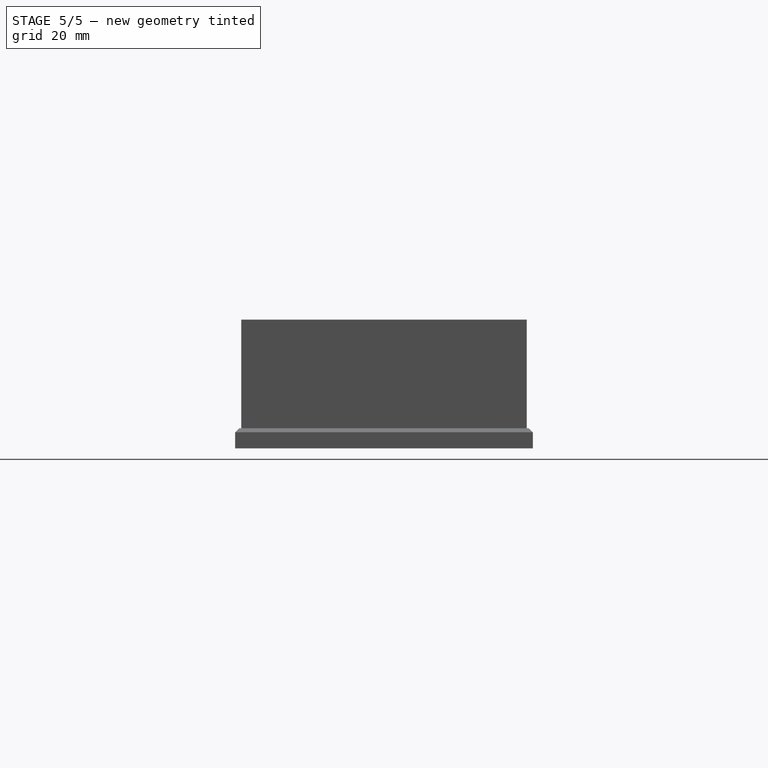
[diagram: stage 5 of 5 — right view after this stage's code; geometry added in this stage tinted green]
FEATURE [Part::Box] Box001  label="adapter-port-cutout"
  AttacherType = Attacher::AttachEngine3D
  AttachmentOffset = pos=(-56.28,11,-1.5) rot=(0,0,1;0rad)
  Height = 3
  Length = 10
  MapMode = 5
  Placement = pos=(1.5,56.28,11) rot=(0.57735,-0.57735,-0.57735;2.0944rad)
  Support = -> [Extrude002]
  Width = 10
  expr: Height = <<dims>>.wallThickness * 2
  expr: .AttachmentOffset.Base.x = -<<dims>>.wallThickness - 54.78mm
  expr: .AttachmentOffset.Base.z = -<<dims>>.wallThickness
FEATURE [Part::Box] Box002  label="back-panel-cutout"
  AttacherType = Attacher::AttachEngine3D
  AttachmentOffset = pos=(-59,9.7,-1.5) rot=(0,0,1;0rad)
  Height = 3
  Length = 51
  MapMode = 5
  Placement = pos=(59,69.5,9.7) rot=(0,0.707107,0.707107;3.14159rad)
  Support = -> [Extrude002]
  Width = 20
  expr: Length = 59mm - 8mm
  expr: Height = <<dims>>.wallThickness * 2
  expr: .AttachmentOffset.Base.x = -<<dims>>.wallThickness - 57.5mm
  expr: .AttachmentOffset.Base.z = -<<dims>>.wallThickness
FEATURE [Part::MultiFuse] Fusion002  label="top-wall-cutouts"
  Shapes = -> [Box001,Box002,Box003,Extrude004]
FEATURE [Part::Cut] Cut003  label="top-wall-with-cuts"
  Base = -> Fusion004
  Tool = -> Fusion002
FEATURE [Part::Chamfer] Chamfer  label="top-wall"
  Base = -> Cut003
  Edges = 6 edges r=0.99: [Edge5,Edge6,Edge7,Edge8,Edge35,Edge53]
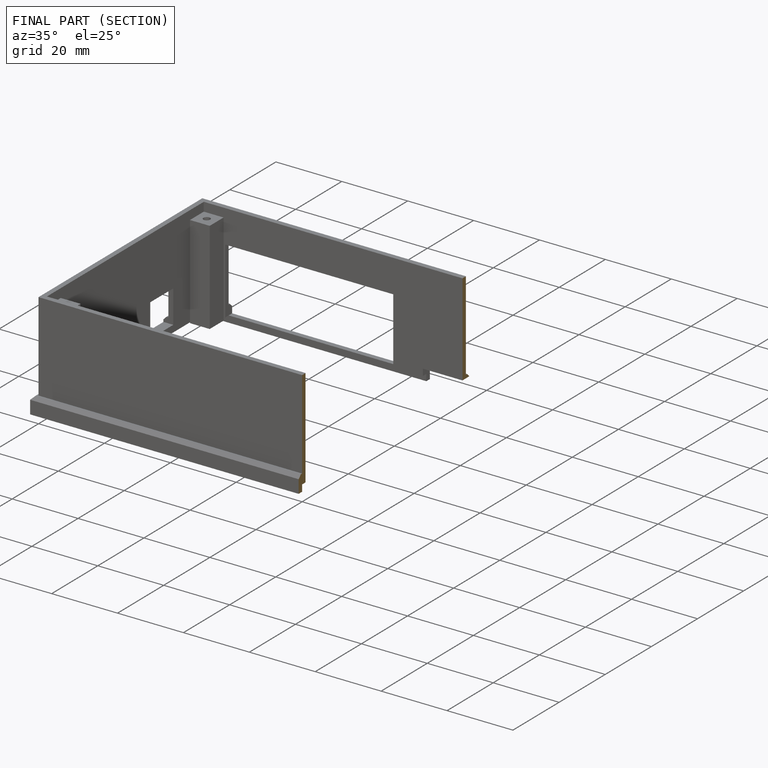
[diagram: finished part — half-section view (interior)]
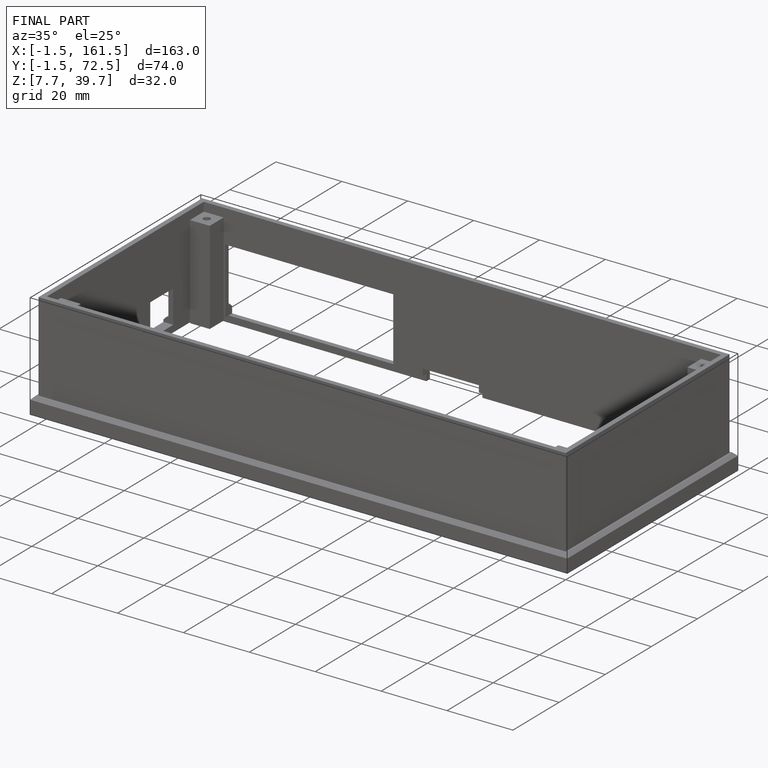
[diagram: finished part — iso view with bounding-box wireframe]
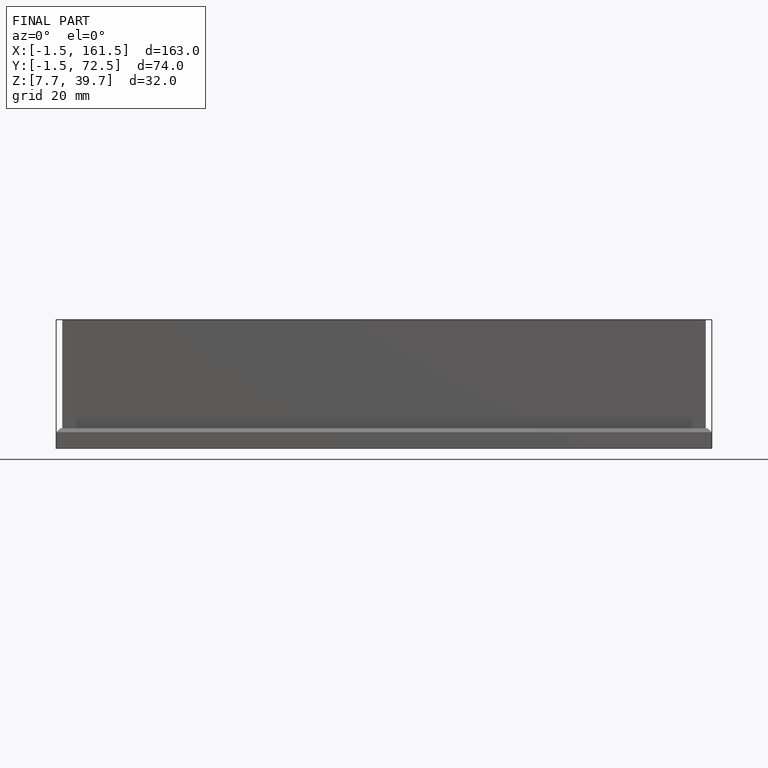
[diagram: finished part — front view with bounding-box wireframe]
